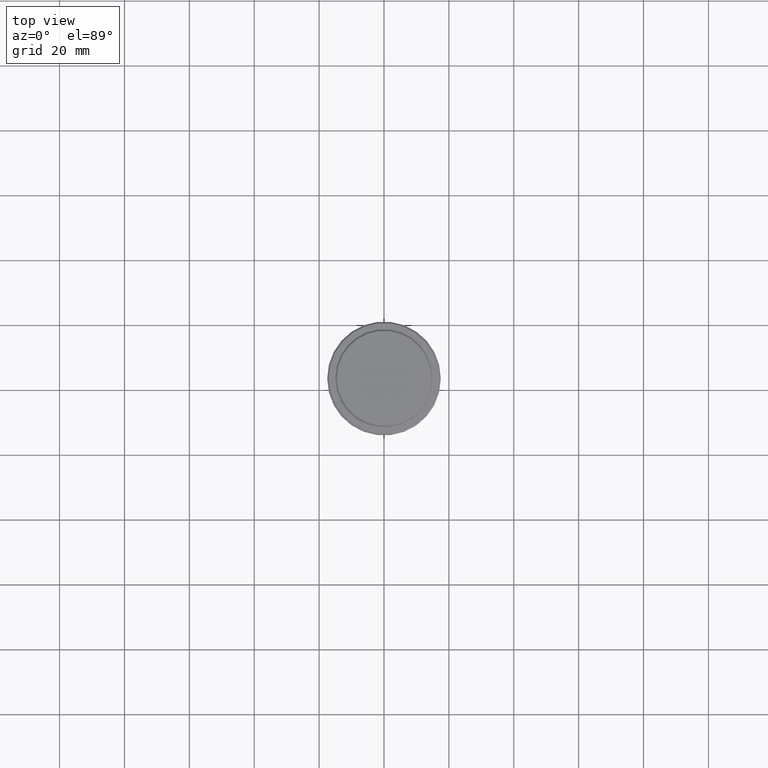
[diagram: clean part render]
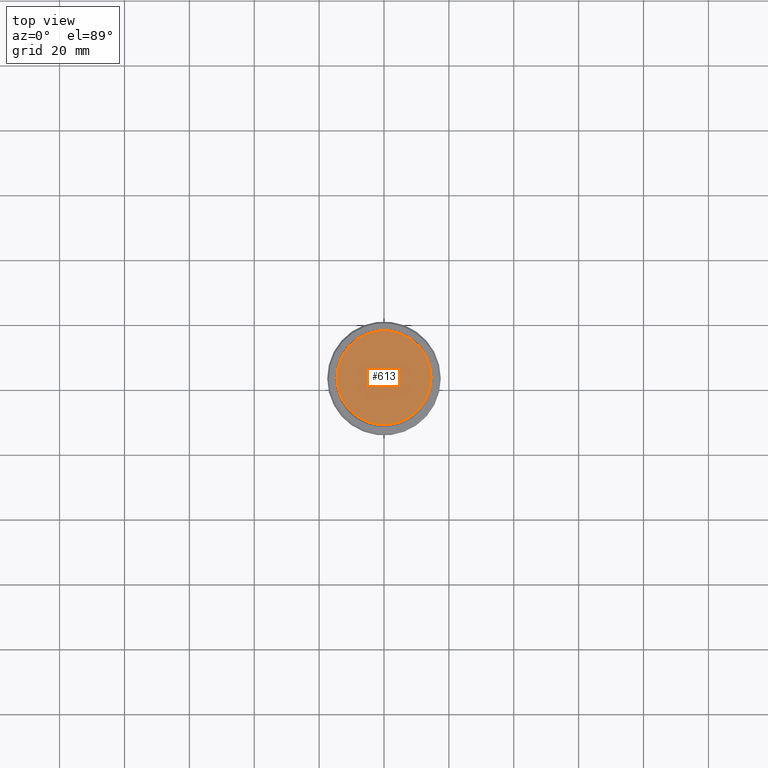
[diagram: same view with one face highlighted and labeled with its STEP entity id]
A machine part, top view. The second image highlights one B-rep face of the part: STEP entity #613.
In plain terms, the highlighted planar face has unit normal (0, -0, 1).
Its self-contained STEP definition (entity closure, byte-faithful):
#67 = CIRCLE ( 'NONE', #1239, 14.49999999999998401 ) ;
#109 = AXIS2_PLACEMENT_3D ( 'NONE', #920, #839, #268 ) ;
#170 = VERTEX_POINT ( 'NONE', #762 ) ;
#265 = ORIENTED_EDGE ( 'NONE', *, *, #652, .T. ) ;
#266 = DIRECTION ( 'NONE',  ( 1.000000000000000000, 0.000000000000000000, 0.000000000000000000 ) ) ;
#268 = DIRECTION ( 'NONE',  ( 1.000000000000000000, 0.000000000000000000, 0.000000000000000000 ) ) ;
#308 = ORIENTED_EDGE ( 'NONE', *, *, #756, .T. ) ;
#528 = AXIS2_PLACEMENT_3D ( 'NONE', #1042, #1276, #1247 ) ;
#613 = ADVANCED_FACE ( 'NONE', ( #1025 ), #1371, .T. ) ;
#652 = EDGE_CURVE ( 'NONE', #734, #170, #1294, .T. ) ;
#677 = CARTESIAN_POINT ( 'NONE',  ( -14.49999999999998401, 0.000000000000000000, 0.000000000000000000 ) ) ;
#734 = VERTEX_POINT ( 'NONE', #677 ) ;
#756 = EDGE_CURVE ( 'NONE', #170, #734, #67, .T. ) ;
#762 = CARTESIAN_POINT ( 'NONE',  ( 14.49999999999998401, 1.806354028742345013E-15, 0.000000000000000000 ) ) ;
#839 = DIRECTION ( 'NONE',  ( 0.000000000000000000, -0.000000000000000000, 1.000000000000000000 ) ) ;
#907 = DIRECTION ( 'NONE',  ( -0.000000000000000000, -0.000000000000000000, 1.000000000000000000 ) ) ;
#920 = CARTESIAN_POINT ( 'NONE',  ( 0.000000000000000000, 0.000000000000000000, 0.000000000000000000 ) ) ;
#1025 = FACE_OUTER_BOUND ( 'NONE', #1082, .T. ) ;
#1042 = CARTESIAN_POINT ( 'NONE',  ( 0.000000000000000000, 0.000000000000000000, 0.000000000000000000 ) ) ;
#1082 = EDGE_LOOP ( 'NONE', ( #265, #308 ) ) ;
#1148 = CARTESIAN_POINT ( 'NONE',  ( 0.000000000000000000, 0.000000000000000000, 0.000000000000000000 ) ) ;
#1239 = AXIS2_PLACEMENT_3D ( 'NONE', #1148, #907, #266 ) ;
#1247 = DIRECTION ( 'NONE',  ( 1.000000000000000000, 0.000000000000000000, 0.000000000000000000 ) ) ;
#1276 = DIRECTION ( 'NONE',  ( -0.000000000000000000, -0.000000000000000000, 1.000000000000000000 ) ) ;
#1294 = CIRCLE ( 'NONE', #528, 14.49999999999998401 ) ;
#1371 = PLANE ( 'NONE',  #109 ) ;